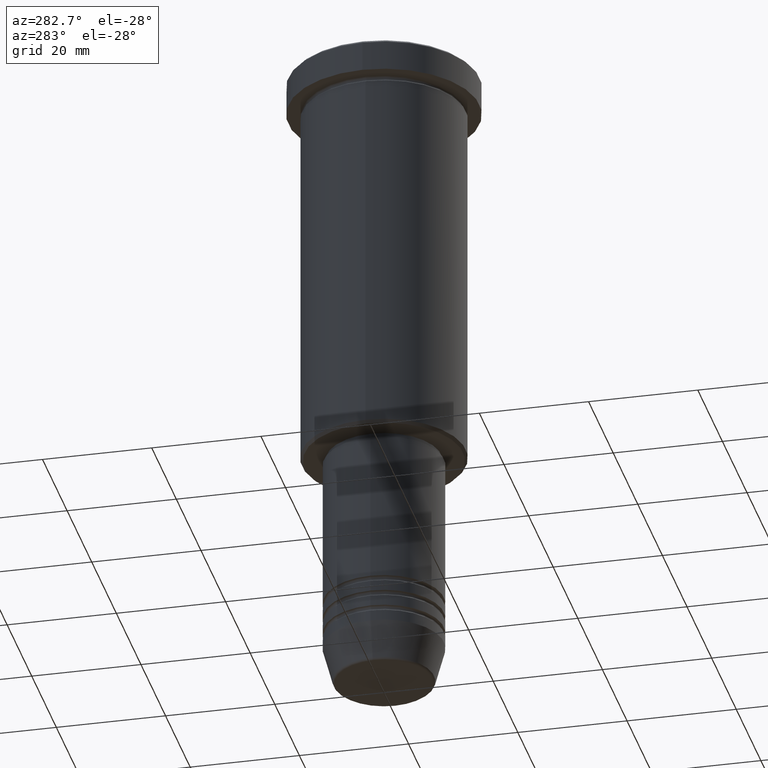
[diagram: clean part render]
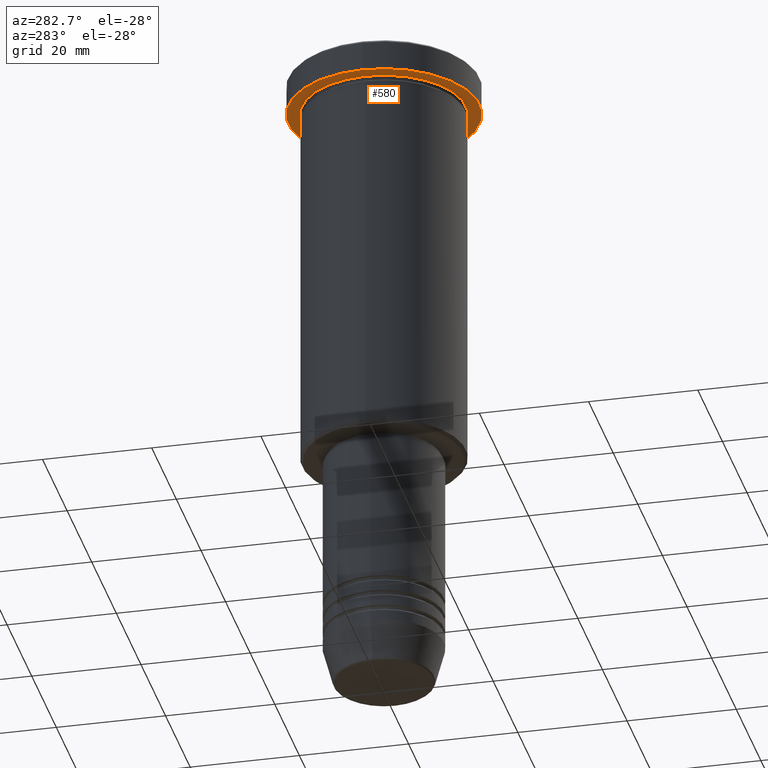
[diagram: same view with one face highlighted and labeled with its STEP entity id]
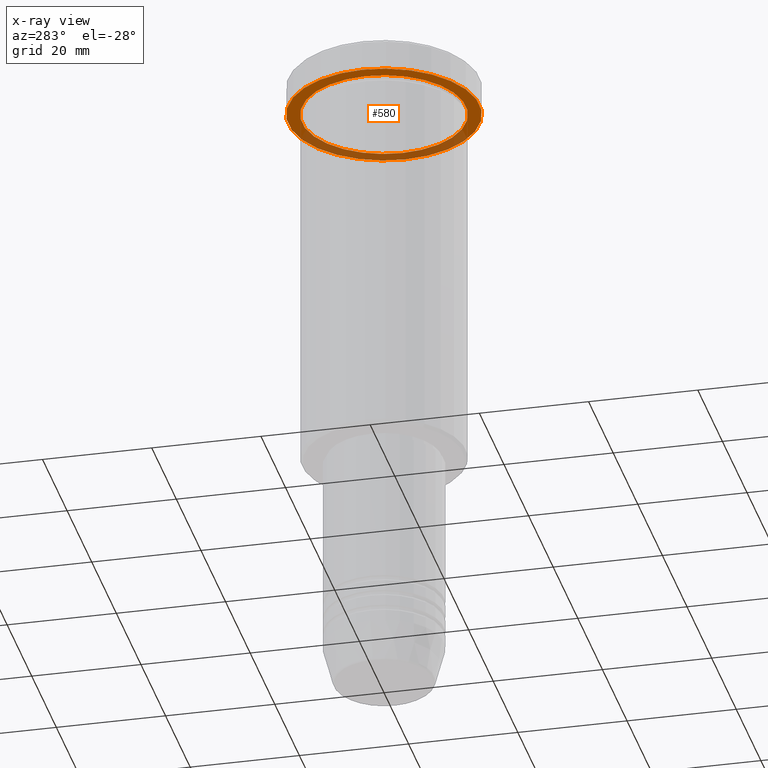
[diagram: x-ray of the same camera — body ghosted, the highlighted face saturated]
A machine part, auxiliary view. The second image highlights one B-rep face of the part: STEP entity #580.
The next image is the same camera in x-ray: the body ghosted, the highlighted face saturated — about 35% of this face is hidden behind the body in this view.
In plain terms, the highlighted planar face has unit normal (0, 0, -1).
Its self-contained STEP definition (entity closure, byte-faithful):
#109 = CARTESIAN_POINT ( 'NONE',  ( -15.00000000000000000, 0.000000000000000000, -5.999999999999994671 ) ) ;
#122 = DIRECTION ( 'NONE',  ( 0.000000000000000000, 0.000000000000000000, -1.000000000000000000 ) ) ;
#133 = AXIS2_PLACEMENT_3D ( 'NONE', #204, #460, #1155 ) ;
#165 = EDGE_CURVE ( 'NONE', #592, #720, #1041, .T. ) ;
#197 = AXIS2_PLACEMENT_3D ( 'NONE', #1157, #250, #699 ) ;
#204 = CARTESIAN_POINT ( 'NONE',  ( 0.000000000000000000, 0.000000000000000000, -5.999999999999995559 ) ) ;
#208 = PLANE ( 'NONE',  #429 ) ;
#241 = AXIS2_PLACEMENT_3D ( 'NONE', #841, #1109, #661 ) ;
#250 = DIRECTION ( 'NONE',  ( -0.000000000000000000, -0.000000000000000000, 1.000000000000000000 ) ) ;
#270 = CARTESIAN_POINT ( 'NONE',  ( 0.000000000000000000, 0.000000000000000000, -5.999999999999995559 ) ) ;
#281 = DIRECTION ( 'NONE',  ( -0.000000000000000000, -0.000000000000000000, 1.000000000000000000 ) ) ;
#286 = ORIENTED_EDGE ( 'NONE', *, *, #165, .T. ) ;
#313 = ORIENTED_EDGE ( 'NONE', *, *, #740, .F. ) ;
#333 = CARTESIAN_POINT ( 'NONE',  ( -17.50000000000000000, 2.143131898507868248E-15, -5.999999999999995559 ) ) ;
#351 = DIRECTION ( 'NONE',  ( -1.000000000000000000, 0.000000000000000000, 0.000000000000000000 ) ) ;
#416 = EDGE_LOOP ( 'NONE', ( #582, #286 ) ) ;
#429 = AXIS2_PLACEMENT_3D ( 'NONE', #832, #122, #1016 ) ;
#454 = VERTEX_POINT ( 'NONE', #1150 ) ;
#460 = DIRECTION ( 'NONE',  ( -0.000000000000000000, -0.000000000000000000, 1.000000000000000000 ) ) ;
#580 = ADVANCED_FACE ( 'NONE', ( #927, #949 ), #208, .T. ) ;
#582 = ORIENTED_EDGE ( 'NONE', *, *, #913, .T. ) ;
#592 = VERTEX_POINT ( 'NONE', #768 ) ;
#661 = DIRECTION ( 'NONE',  ( 1.000000000000000000, 0.000000000000000000, 0.000000000000000000 ) ) ;
#668 = CIRCLE ( 'NONE', #197, 17.50000000000000000 ) ;
#699 = DIRECTION ( 'NONE',  ( 1.000000000000000000, 0.000000000000000000, 0.000000000000000000 ) ) ;
#720 = VERTEX_POINT ( 'NONE', #109 ) ;
#740 = EDGE_CURVE ( 'NONE', #454, #1057, #822, .T. ) ;
#741 = AXIS2_PLACEMENT_3D ( 'NONE', #270, #281, #351 ) ;
#768 = CARTESIAN_POINT ( 'NONE',  ( 15.00000000000000000, 1.836970198721029589E-15, -5.999999999999994671 ) ) ;
#822 = CIRCLE ( 'NONE', #241, 17.50000000000000000 ) ;
#832 = CARTESIAN_POINT ( 'NONE',  ( 0.000000000000000000, 17.50000000000000000, -5.999999999999995559 ) ) ;
#839 = EDGE_LOOP ( 'NONE', ( #313, #910 ) ) ;
#841 = CARTESIAN_POINT ( 'NONE',  ( 0.000000000000000000, 0.000000000000000000, -5.999999999999995559 ) ) ;
#910 = ORIENTED_EDGE ( 'NONE', *, *, #1005, .F. ) ;
#913 = EDGE_CURVE ( 'NONE', #720, #592, #1065, .T. ) ;
#927 = FACE_BOUND ( 'NONE', #416, .T. ) ;
#949 = FACE_OUTER_BOUND ( 'NONE', #839, .T. ) ;
#1005 = EDGE_CURVE ( 'NONE', #1057, #454, #668, .T. ) ;
#1016 = DIRECTION ( 'NONE',  ( -1.000000000000000000, 0.000000000000000000, -0.000000000000000000 ) ) ;
#1041 = CIRCLE ( 'NONE', #741, 15.00000000000000000 ) ;
#1057 = VERTEX_POINT ( 'NONE', #333 ) ;
#1065 = CIRCLE ( 'NONE', #133, 15.00000000000000000 ) ;
#1109 = DIRECTION ( 'NONE',  ( -0.000000000000000000, -0.000000000000000000, 1.000000000000000000 ) ) ;
#1150 = CARTESIAN_POINT ( 'NONE',  ( 17.50000000000000000, 0.000000000000000000, -5.999999999999995559 ) ) ;
#1155 = DIRECTION ( 'NONE',  ( -1.000000000000000000, 0.000000000000000000, 0.000000000000000000 ) ) ;
#1157 = CARTESIAN_POINT ( 'NONE',  ( 0.000000000000000000, 0.000000000000000000, -5.999999999999995559 ) ) ;